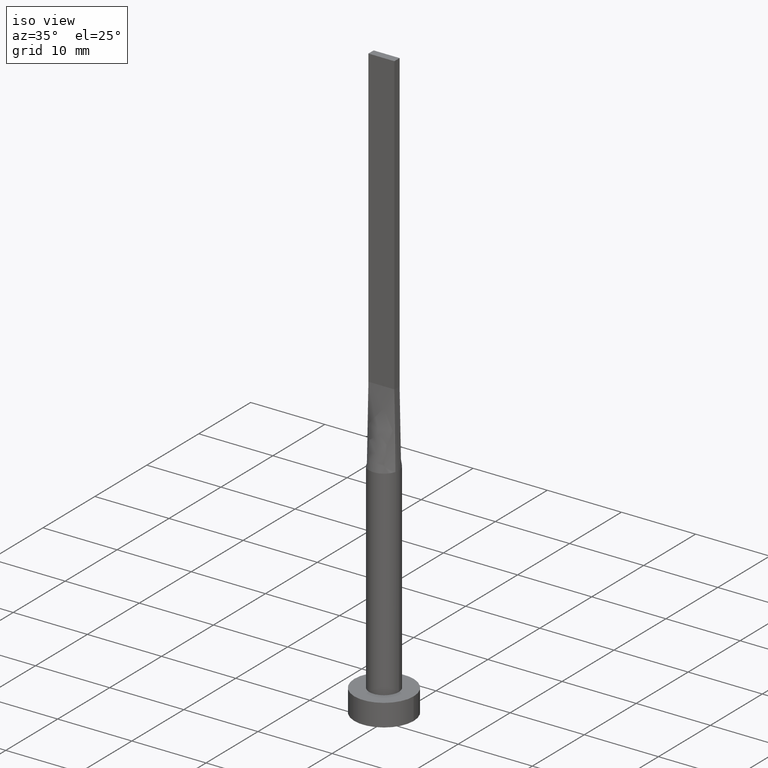
[diagram: clean part render]
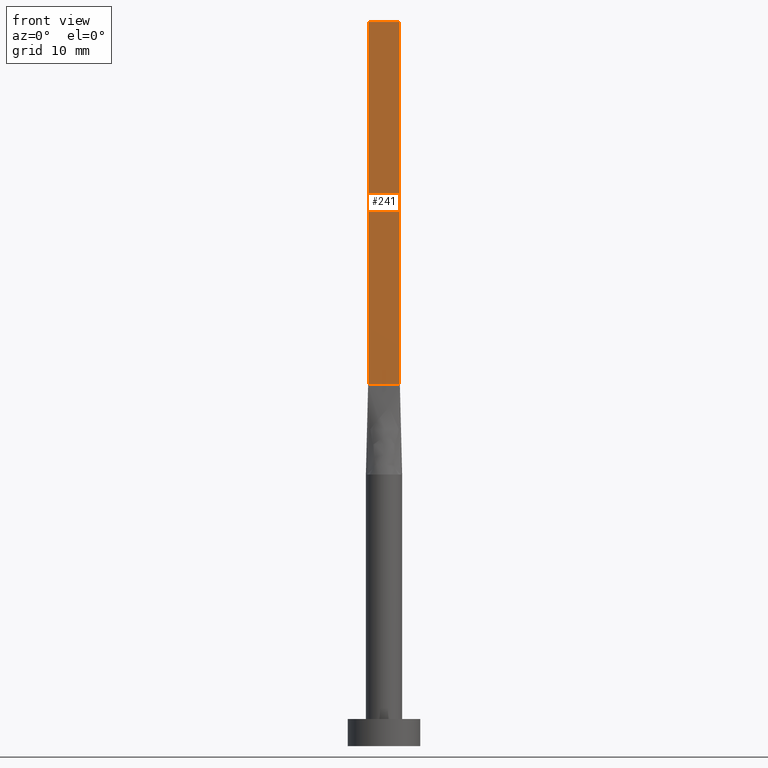
[diagram: tour spotlight — one face highlighted and labeled with its STEP entity id]
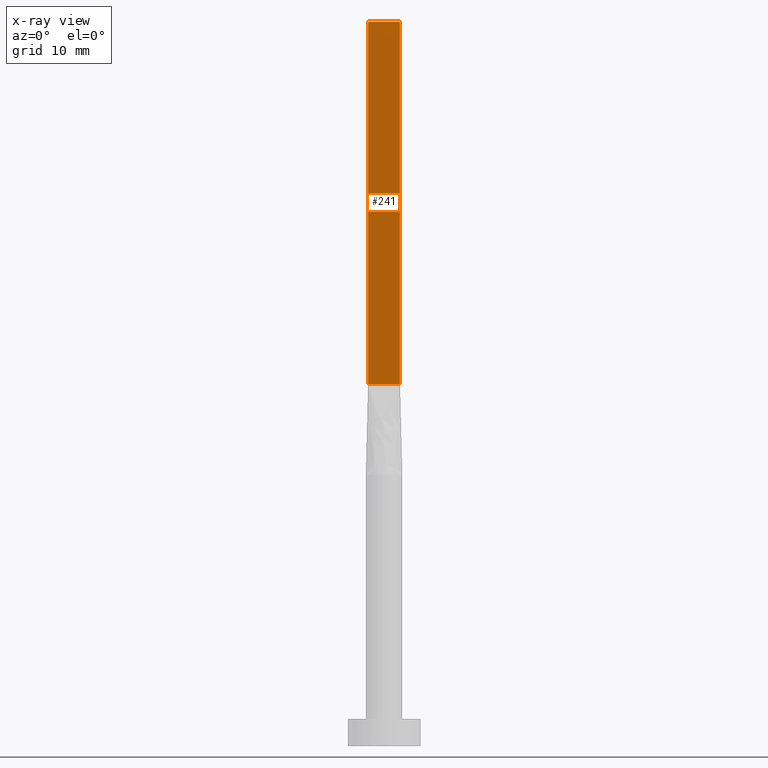
[diagram: x-ray of the same camera — body ghosted, this tour face saturated]
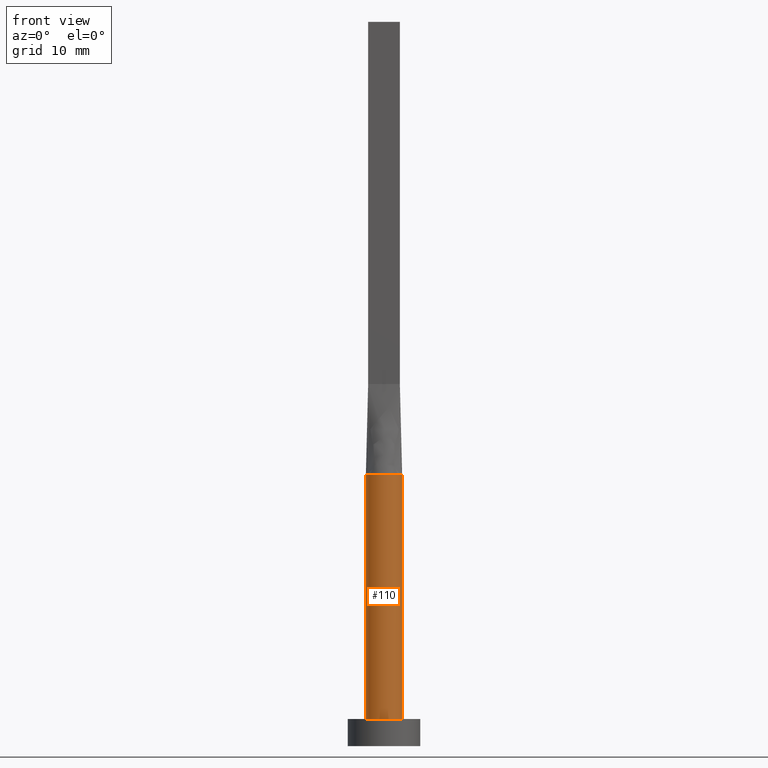
[diagram: tour spotlight — one face highlighted and labeled with its STEP entity id]
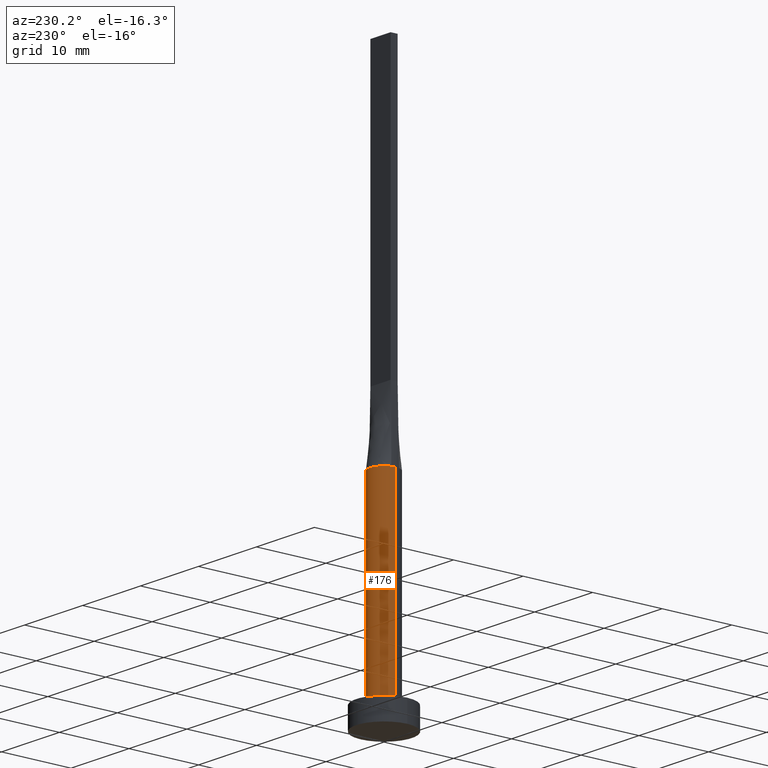
[diagram: tour spotlight — one face highlighted and labeled with its STEP entity id]
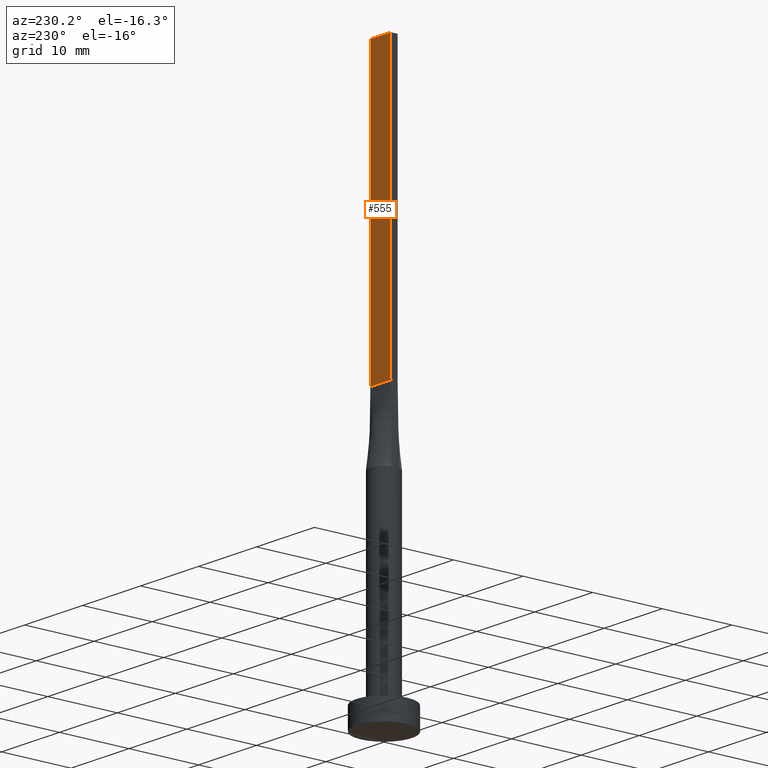
[diagram: tour spotlight — one face highlighted and labeled with its STEP entity id]
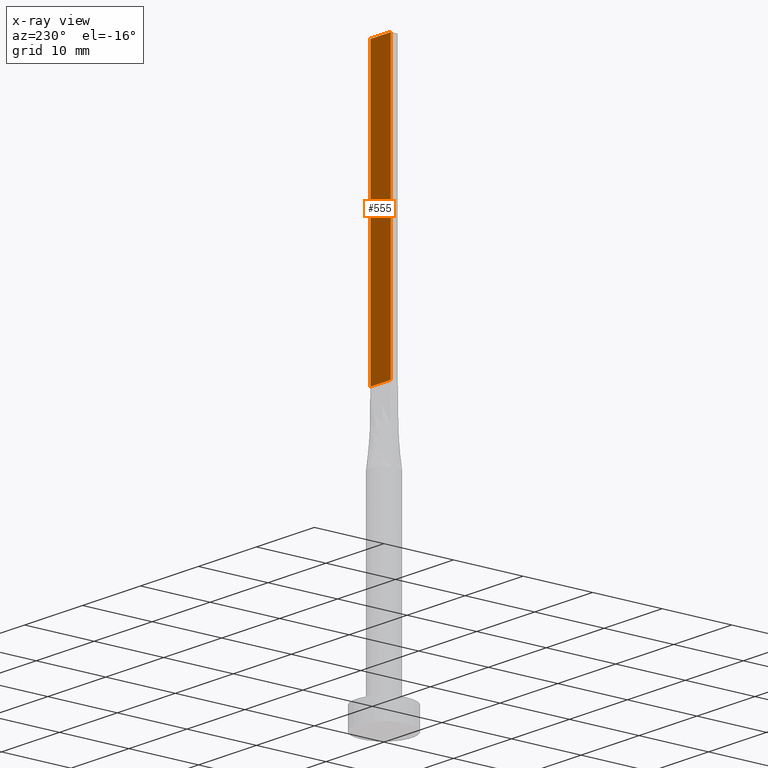
[diagram: x-ray of the same camera — body ghosted, this tour face saturated]
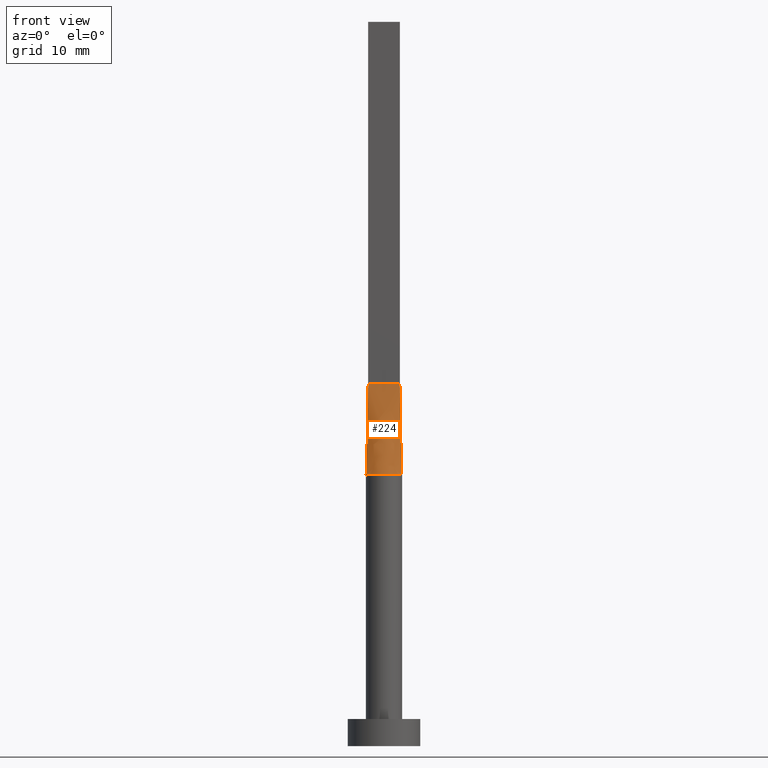
[diagram: tour spotlight — one face highlighted and labeled with its STEP entity id]
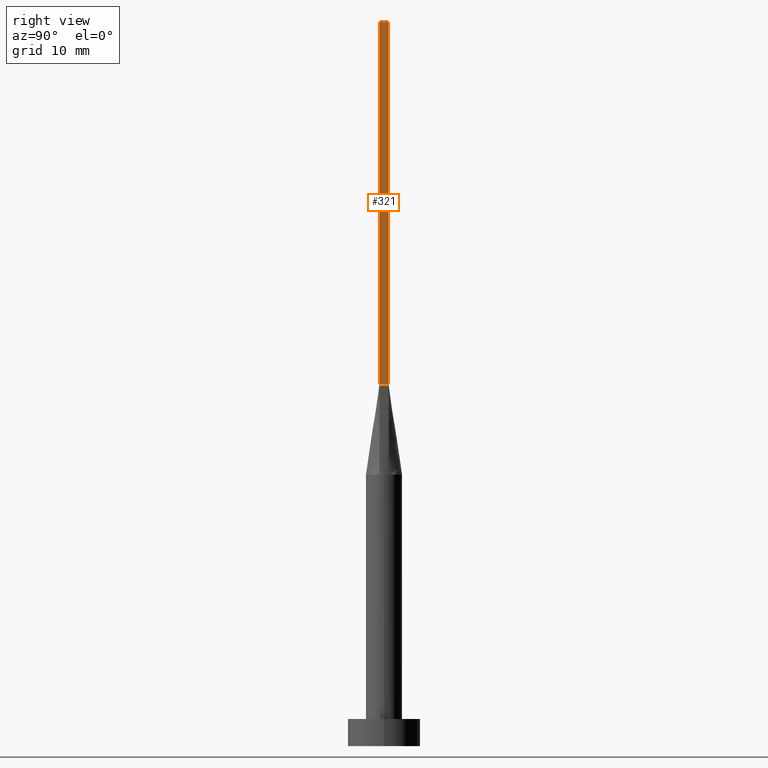
[diagram: tour spotlight — one face highlighted and labeled with its STEP entity id]
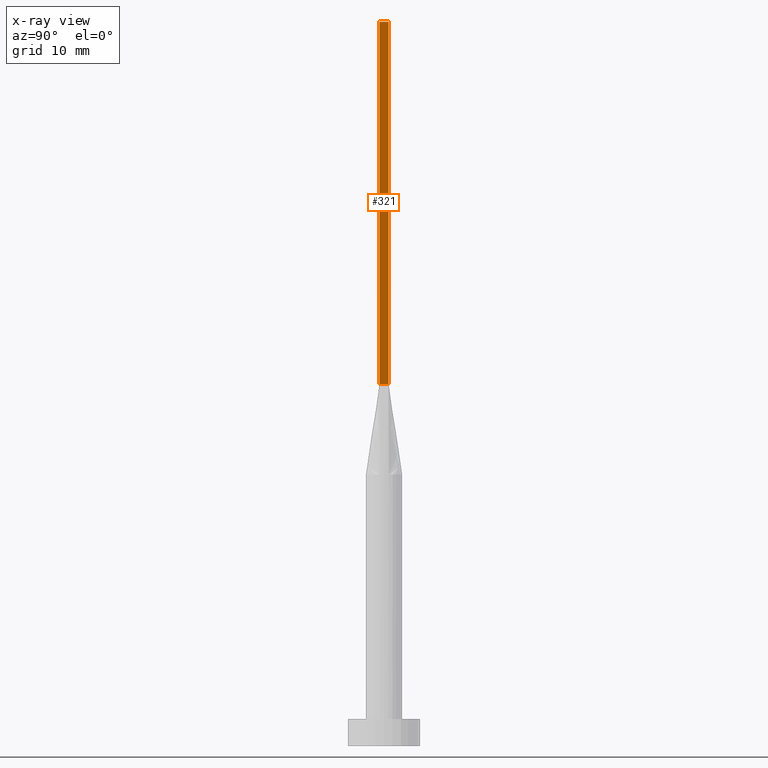
[diagram: x-ray of the same camera — body ghosted, this tour face saturated]
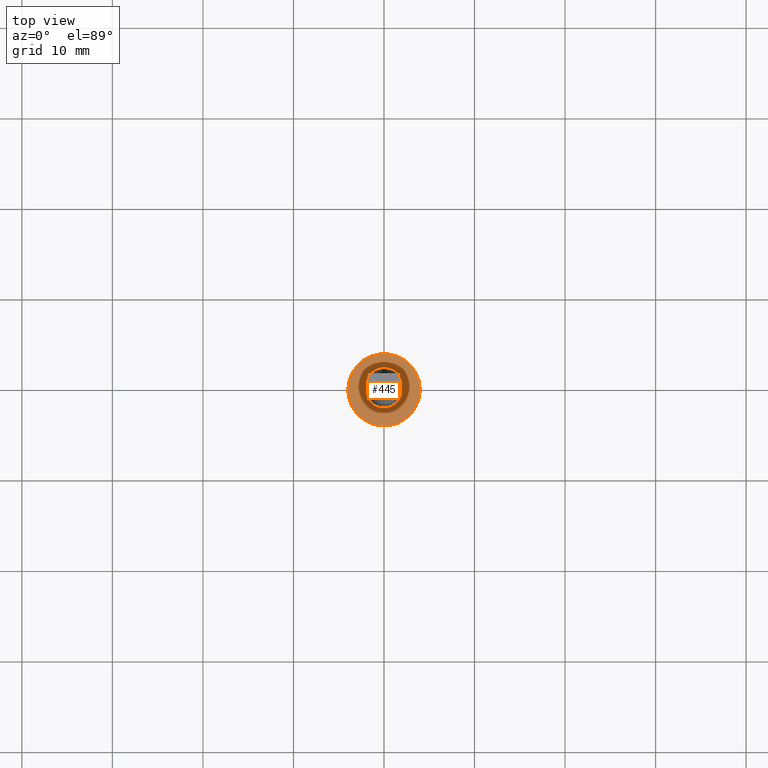
[diagram: tour spotlight — one face highlighted and labeled with its STEP entity id]
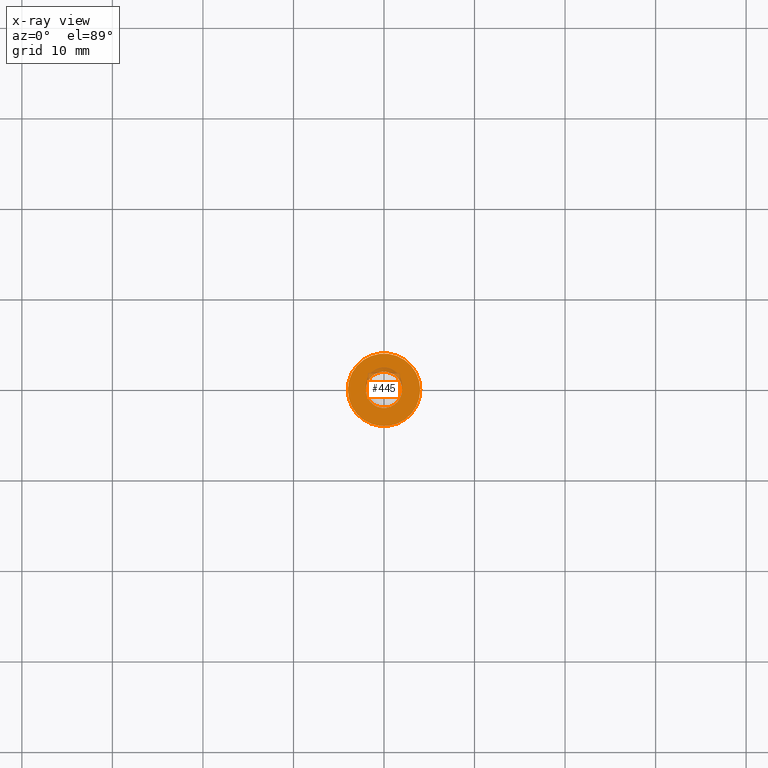
[diagram: x-ray of the same camera — body ghosted, this tour face saturated]
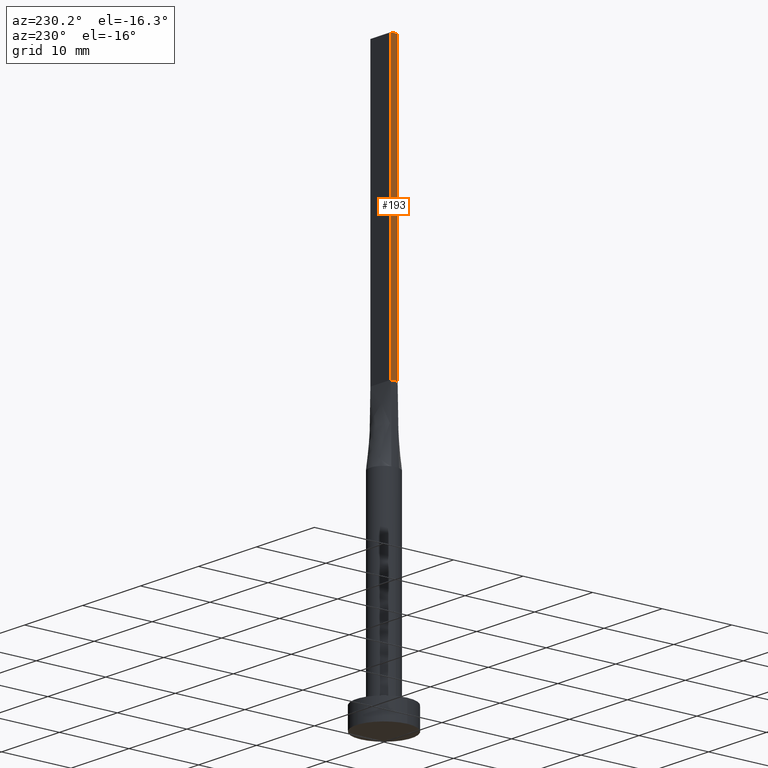
[diagram: tour spotlight — one face highlighted and labeled with its STEP entity id]
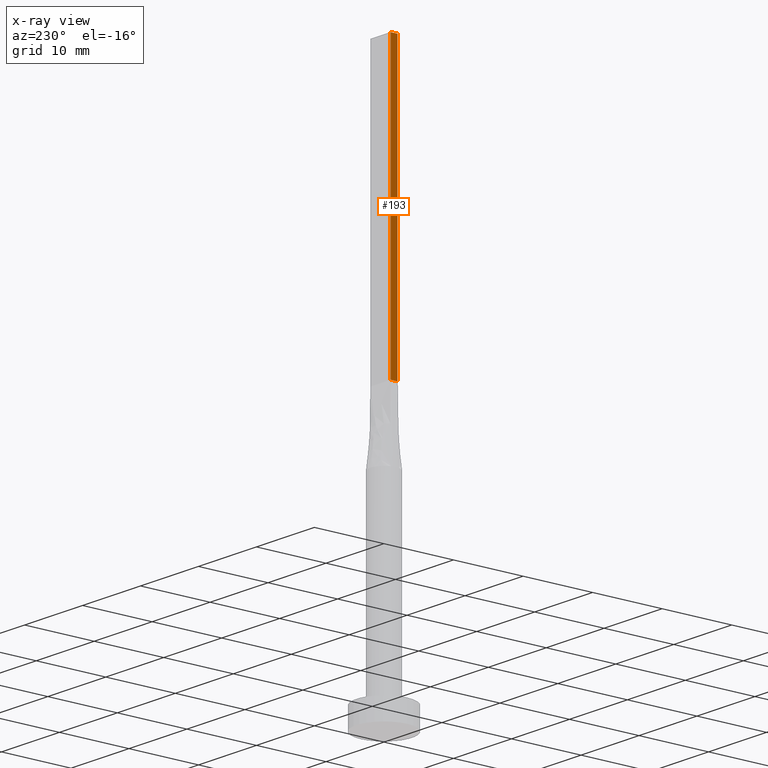
[diagram: x-ray of the same camera — body ghosted, this tour face saturated]
A machine part: a face-by-face anatomy tour. The part has 15 B-rep faces; the first image is the clean iso view, then the 8 largest visible faces are spotlighted one at a time (largest first), each with its STEP entity span.

Face 1 — front view, entity #241. An x-ray twin of the same camera follows (body ghosted, this face saturated) — the face is partly hidden behind the body. In plain terms, the highlighted planar face has unit normal (0, 1, -0).
Definition (entity closure, byte-faithful):
#26 = VERTEX_POINT ( 'NONE', #297 ) ;
#33 = ORIENTED_EDGE ( 'NONE', *, *, #76, .T. ) ;
#39 = DIRECTION ( 'NONE',  ( -0.000000000000000000, -0.000000000000000000, -1.000000000000000000 ) ) ;
#62 = LINE ( 'NONE', #243, #306 ) ;
#76 = EDGE_CURVE ( 'NONE', #236, #26, #520, .T. ) ;
#77 = CARTESIAN_POINT ( 'NONE',  ( -1.750000000000000000, -0.4999999999999995559, 80.00000000000000000 ) ) ;
#103 = VECTOR ( 'NONE', #39, 1000.000000000000000 ) ;
#112 = PLANE ( 'NONE',  #389 ) ;
#128 = VECTOR ( 'NONE', #191, 1000.000000000000000 ) ;
#132 = CARTESIAN_POINT ( 'NONE',  ( 1.750000000000000000, -0.4999999999999997780, 80.00000000000000000 ) ) ;
#156 = DIRECTION ( 'NONE',  ( -0.000000000000000000, -0.000000000000000000, -1.000000000000000000 ) ) ;
#185 = VERTEX_POINT ( 'NONE', #132 ) ;
#191 = DIRECTION ( 'NONE',  ( 1.000000000000000000, -6.195440985631454085E-17, 0.000000000000000000 ) ) ;
#203 = CARTESIAN_POINT ( 'NONE',  ( -1.750000000000000000, -0.4999999999999995559, 80.00000000000000000 ) ) ;
#205 = CARTESIAN_POINT ( 'NONE',  ( -1.750000000000000000, -0.4999999999999995559, 80.00000000000000000 ) ) ;
#236 = VERTEX_POINT ( 'NONE', #205 ) ;
#241 = ADVANCED_FACE ( 'NONE', ( #361 ), #112, .F. ) ;
#243 = CARTESIAN_POINT ( 'NONE',  ( 1.750000000000000000, -0.4999999999999997780, 80.00000000000000000 ) ) ;
#274 = CARTESIAN_POINT ( 'NONE',  ( -1.750000000000000000, -0.4999999999999995559, 80.00000000000000000 ) ) ;
#280 = ORIENTED_EDGE ( 'NONE', *, *, #348, .T. ) ;
#287 = DIRECTION ( 'NONE',  ( 6.195440985631454085E-17, 1.000000000000000000, -0.000000000000000000 ) ) ;
#297 = CARTESIAN_POINT ( 'NONE',  ( -1.750000000000000000, -0.4999999999999995559, 40.00000000000000000 ) ) ;
#306 = VECTOR ( 'NONE', #156, 1000.000000000000000 ) ;
#310 = CARTESIAN_POINT ( 'NONE',  ( 1.750000000000000000, -0.4999999999999997780, 40.00000000000000000 ) ) ;
#333 = LINE ( 'NONE', #203, #128 ) ;
#345 = DIRECTION ( 'NONE',  ( 1.000000000000000000, -6.195440985631454085E-17, 0.000000000000000000 ) ) ;
#348 = EDGE_CURVE ( 'NONE', #26, #511, #428, .T. ) ;
#361 = FACE_OUTER_BOUND ( 'NONE', #507, .T. ) ;
#378 = DIRECTION ( 'NONE',  ( -1.000000000000000000, 6.195440985631454085E-17, 0.000000000000000000 ) ) ;
#389 = AXIS2_PLACEMENT_3D ( 'NONE', #274, #287, #378 ) ;
#417 = ORIENTED_EDGE ( 'NONE', *, *, #493, .F. ) ;
#428 = LINE ( 'NONE', #574, #463 ) ;
#463 = VECTOR ( 'NONE', #345, 1000.000000000000000 ) ;
#489 = EDGE_CURVE ( 'NONE', #185, #511, #62, .T. ) ;
#493 = EDGE_CURVE ( 'NONE', #236, #185, #333, .T. ) ;
#507 = EDGE_LOOP ( 'NONE', ( #280, #560, #417, #33 ) ) ;
#511 = VERTEX_POINT ( 'NONE', #310 ) ;
#520 = LINE ( 'NONE', #77, #103 ) ;
#560 = ORIENTED_EDGE ( 'NONE', *, *, #489, .F. ) ;
#574 = CARTESIAN_POINT ( 'NONE',  ( -1.750000000000000000, -0.4999999999999995559, 40.00000000000000000 ) ) ;

Face 2 — front view, entity #110. In plain terms, the highlighted cylindrical surface (edge-blend (fillet) strip) has radius 2 mm, axis along (-0, -0, -1).
Definition (entity closure, byte-faithful):
#2 = FACE_OUTER_BOUND ( 'NONE', #377, .T. ) ;
#41 = AXIS2_PLACEMENT_3D ( 'NONE', #300, #291, #386 ) ;
#60 = ORIENTED_EDGE ( 'NONE', *, *, #266, .F. ) ;
#63 = VERTEX_POINT ( 'NONE', #121 ) ;
#75 = LINE ( 'NONE', #549, #186 ) ;
#101 = VERTEX_POINT ( 'NONE', #486 ) ;
#104 = DIRECTION ( 'NONE',  ( -0.000000000000000000, -0.000000000000000000, -1.000000000000000000 ) ) ;
#110 = ADVANCED_FACE ( 'NONE', ( #2 ), #336, .T. ) ;
#121 = CARTESIAN_POINT ( 'NONE',  ( 2.000000000000000000, 2.759698982225367658E-17, 30.00000000000000000 ) ) ;
#130 = EDGE_CURVE ( 'NONE', #63, #470, #75, .T. ) ;
#134 = AXIS2_PLACEMENT_3D ( 'NONE', #292, #474, #406 ) ;
#136 = EDGE_CURVE ( 'NONE', #419, #470, #533, .T. ) ;
#141 = CARTESIAN_POINT ( 'NONE',  ( 0.000000000000000000, 0.000000000000000000, 3.000000000000000000 ) ) ;
#158 = CARTESIAN_POINT ( 'NONE',  ( 1.923186205402444449, -0.5494823831763672173, 30.00000000000000000 ) ) ;
#160 = VERTEX_POINT ( 'NONE', #401 ) ;
#186 = VECTOR ( 'NONE', #366, 1000.000000000000000 ) ;
#194 = AXIS2_PLACEMENT_3D ( 'NONE', #562, #384, #290 ) ;
#266 = EDGE_CURVE ( 'NONE', #160, #101, #368, .T. ) ;
#273 = ORIENTED_EDGE ( 'NONE', *, *, #136, .T. ) ;
#276 = AXIS2_PLACEMENT_3D ( 'NONE', #141, #528, #313 ) ;
#277 = VECTOR ( 'NONE', #104, 1000.000000000000000 ) ;
#289 = VERTEX_POINT ( 'NONE', #158 ) ;
#290 = DIRECTION ( 'NONE',  ( 1.000000000000000000, 0.000000000000000000, 0.000000000000000000 ) ) ;
#291 = DIRECTION ( 'NONE',  ( -0.000000000000000000, -0.000000000000000000, -1.000000000000000000 ) ) ;
#292 = CARTESIAN_POINT ( 'NONE',  ( 0.000000000000000000, 0.000000000000000000, 30.00000000000000000 ) ) ;
#295 = EDGE_CURVE ( 'NONE', #101, #289, #461, .T. ) ;
#299 = CARTESIAN_POINT ( 'NONE',  ( -2.000000000000000000, 0.000000000000000000, 3.000000000000000000 ) ) ;
#300 = CARTESIAN_POINT ( 'NONE',  ( 0.000000000000000000, 0.000000000000000000, 30.00000000000000000 ) ) ;
#313 = DIRECTION ( 'NONE',  ( 1.000000000000000000, 0.000000000000000000, 0.000000000000000000 ) ) ;
#324 = ORIENTED_EDGE ( 'NONE', *, *, #130, .F. ) ;
#336 = CYLINDRICAL_SURFACE ( 'NONE', #41, 2.000000000000000000 ) ;
#366 = DIRECTION ( 'NONE',  ( -0.000000000000000000, -0.000000000000000000, -1.000000000000000000 ) ) ;
#368 = CIRCLE ( 'NONE', #194, 2.000000000000000000 ) ;
#377 = EDGE_LOOP ( 'NONE', ( #324, #564, #504, #60, #506, #273 ) ) ;
#384 = DIRECTION ( 'NONE',  ( 0.000000000000000000, 0.000000000000000000, 1.000000000000000000 ) ) ;
#386 = DIRECTION ( 'NONE',  ( -1.000000000000000000, 0.000000000000000000, 0.000000000000000000 ) ) ;
#387 = DIRECTION ( 'NONE',  ( 0.000000000000000000, 0.000000000000000000, 1.000000000000000000 ) ) ;
#393 = CARTESIAN_POINT ( 'NONE',  ( 0.000000000000000000, 0.000000000000000000, 30.00000000000000000 ) ) ;
#401 = CARTESIAN_POINT ( 'NONE',  ( -2.000000000000000000, 8.710755549421510381E-17, 30.00000000000000000 ) ) ;
#406 = DIRECTION ( 'NONE',  ( 1.000000000000000000, 0.000000000000000000, 0.000000000000000000 ) ) ;
#413 = EDGE_CURVE ( 'NONE', #289, #63, #534, .T. ) ;
#419 = VERTEX_POINT ( 'NONE', #299 ) ;
#461 = CIRCLE ( 'NONE', #134, 2.000000000000000000 ) ;
#465 = CARTESIAN_POINT ( 'NONE',  ( 2.000000000000000000, 2.449293598294706414E-16, 3.000000000000000000 ) ) ;
#468 = EDGE_CURVE ( 'NONE', #160, #419, #563, .T. ) ;
#470 = VERTEX_POINT ( 'NONE', #465 ) ;
#474 = DIRECTION ( 'NONE',  ( 0.000000000000000000, 0.000000000000000000, 1.000000000000000000 ) ) ;
#481 = DIRECTION ( 'NONE',  ( 1.000000000000000000, 3.552713678800500929E-15, 0.000000000000000000 ) ) ;
#486 = CARTESIAN_POINT ( 'NONE',  ( -1.923161340940673369, -0.5494751859438878894, 30.00000000000000000 ) ) ;
#504 = ORIENTED_EDGE ( 'NONE', *, *, #295, .F. ) ;
#506 = ORIENTED_EDGE ( 'NONE', *, *, #468, .T. ) ;
#508 = CARTESIAN_POINT ( 'NONE',  ( -2.000000000000000000, 0.000000000000000000, 30.00000000000000000 ) ) ;
#528 = DIRECTION ( 'NONE',  ( 0.000000000000000000, 0.000000000000000000, 1.000000000000000000 ) ) ;
#533 = CIRCLE ( 'NONE', #276, 2.000000000000000000 ) ;
#534 = CIRCLE ( 'NONE', #543, 2.000000000000000000 ) ;
#543 = AXIS2_PLACEMENT_3D ( 'NONE', #393, #387, #481 ) ;
#549 = CARTESIAN_POINT ( 'NONE',  ( 2.000000000000000000, 2.449293598294706414E-16, 30.00000000000000000 ) ) ;
#562 = CARTESIAN_POINT ( 'NONE',  ( 0.000000000000000000, 0.000000000000000000, 30.00000000000000000 ) ) ;
#563 = LINE ( 'NONE', #508, #277 ) ;
#564 = ORIENTED_EDGE ( 'NONE', *, *, #413, .F. ) ;

Face 3 — auxiliary view, entity #176. In plain terms, the highlighted cylindrical surface (edge-blend (fillet) strip) has radius 2 mm, axis along (-0, -0, -1).
Definition (entity closure, byte-faithful):
#20 = CARTESIAN_POINT ( 'NONE',  ( -1.616149014776643966, 1.193458220519943103, 30.00000000000000711 ) ) ;
#59 = CARTESIAN_POINT ( 'NONE',  ( 1.879022738048942154, 0.7035303061092218480, 30.00000000000000355 ) ) ;
#63 = VERTEX_POINT ( 'NONE', #121 ) ;
#65 = CARTESIAN_POINT ( 'NONE',  ( 0.000000000000000000, 0.000000000000000000, 30.00000000000000000 ) ) ;
#75 = LINE ( 'NONE', #549, #186 ) ;
#80 = CARTESIAN_POINT ( 'NONE',  ( -1.923179810488875541, 0.5494804890868837388, 30.00000000000000000 ) ) ;
#99 = CARTESIAN_POINT ( 'NONE',  ( 0.9545234919502409987, 1.774214358793529955, 30.00000000000000355 ) ) ;
#104 = DIRECTION ( 'NONE',  ( -0.000000000000000000, -0.000000000000000000, -1.000000000000000000 ) ) ;
#108 = B_SPLINE_CURVE_WITH_KNOTS ( 'NONE', 3,
 ( #552, #59, #458, #326, #374, #145, #99, #235, #415, #196, #381, #559, #238, #418, #20, #199, #152, #556 ),
 .UNSPECIFIED., .F., .F.,
 ( 4, 2, 2, 2, 2, 2, 2, 2, 4 ),
 ( 0.000000000000000000, 0.1249999999999999722, 0.2500000000000000000, 0.3750000000000000000, 0.5000000000000001110, 0.6250000000000001110, 0.7500000000000000000, 0.8750000000000000000, 1.000000000000000000 ),
 .UNSPECIFIED. ) ;
#121 = CARTESIAN_POINT ( 'NONE',  ( 2.000000000000000000, 2.759698982225367658E-17, 30.00000000000000000 ) ) ;
#123 = DIRECTION ( 'NONE',  ( 1.000000000000000000, 0.000000000000000000, 0.000000000000000000 ) ) ;
#130 = EDGE_CURVE ( 'NONE', #63, #470, #75, .T. ) ;
#135 = CYLINDRICAL_SURFACE ( 'NONE', #353, 2.000000000000000000 ) ;
#145 = CARTESIAN_POINT ( 'NONE',  ( 1.155438169178558461, 1.647245198242353714, 29.99999999999999645 ) ) ;
#151 = AXIS2_PLACEMENT_3D ( 'NONE', #519, #385, #391 ) ;
#152 = CARTESIAN_POINT ( 'NONE',  ( -1.879022738048941710, 0.7035303061092221810, 30.00000000000000000 ) ) ;
#160 = VERTEX_POINT ( 'NONE', #401 ) ;
#170 = DIRECTION ( 'NONE',  ( 0.000000000000000000, 0.000000000000000000, 1.000000000000000000 ) ) ;
#176 = ADVANCED_FACE ( 'NONE', ( #225 ), #135, .T. ) ;
#179 = DIRECTION ( 'NONE',  ( -0.000000000000000000, -0.000000000000000000, -1.000000000000000000 ) ) ;
#186 = VECTOR ( 'NONE', #366, 1000.000000000000000 ) ;
#196 = CARTESIAN_POINT ( 'NONE',  ( -0.2514338042514528415, 1.999999999999999556, 30.00000000000001066 ) ) ;
#199 = CARTESIAN_POINT ( 'NONE',  ( -1.812374357931688884, 0.8669367617086288780, 30.00000000000001066 ) ) ;
#206 = CIRCLE ( 'NONE', #151, 2.000000000000000000 ) ;
#221 = VERTEX_POINT ( 'NONE', #80 ) ;
#222 = CIRCLE ( 'NONE', #248, 2.000000000000000000 ) ;
#225 = FACE_OUTER_BOUND ( 'NONE', #478, .T. ) ;
#234 = ORIENTED_EDGE ( 'NONE', *, *, #433, .T. ) ;
#235 = CARTESIAN_POINT ( 'NONE',  ( 0.5022746254375803909, 1.951069421695587947, 29.99999999999999645 ) ) ;
#238 = CARTESIAN_POINT ( 'NONE',  ( -1.155438169178558017, 1.647245198242353936, 30.00000000000000711 ) ) ;
#239 = ORIENTED_EDGE ( 'NONE', *, *, #468, .F. ) ;
#248 = AXIS2_PLACEMENT_3D ( 'NONE', #65, #329, #323 ) ;
#277 = VECTOR ( 'NONE', #104, 1000.000000000000000 ) ;
#299 = CARTESIAN_POINT ( 'NONE',  ( -2.000000000000000000, 0.000000000000000000, 3.000000000000000000 ) ) ;
#323 = DIRECTION ( 'NONE',  ( 1.000000000000000000, 0.000000000000000000, 0.000000000000000000 ) ) ;
#326 = CARTESIAN_POINT ( 'NONE',  ( 1.616149014776643522, 1.193458220519943103, 30.00000000000000000 ) ) ;
#329 = DIRECTION ( 'NONE',  ( 0.000000000000000000, 0.000000000000000000, 1.000000000000000000 ) ) ;
#332 = CIRCLE ( 'NONE', #379, 2.000000000000000000 ) ;
#346 = ORIENTED_EDGE ( 'NONE', *, *, #130, .T. ) ;
#353 = AXIS2_PLACEMENT_3D ( 'NONE', #535, #179, #404 ) ;
#366 = DIRECTION ( 'NONE',  ( -0.000000000000000000, -0.000000000000000000, -1.000000000000000000 ) ) ;
#367 = CARTESIAN_POINT ( 'NONE',  ( 1.923154993136894975, 0.5494733089275741778, 30.00000000000000000 ) ) ;
#374 = CARTESIAN_POINT ( 'NONE',  ( 1.486037034853319616, 1.356520562679217834, 29.99999999999999289 ) ) ;
#379 = AXIS2_PLACEMENT_3D ( 'NONE', #577, #170, #123 ) ;
#381 = CARTESIAN_POINT ( 'NONE',  ( -0.5022746254375797248, 1.951069421695588169, 29.99999999999999645 ) ) ;
#382 = EDGE_CURVE ( 'NONE', #221, #160, #206, .T. ) ;
#385 = DIRECTION ( 'NONE',  ( 0.000000000000000000, 0.000000000000000000, 1.000000000000000000 ) ) ;
#391 = DIRECTION ( 'NONE',  ( 1.000000000000000000, 0.000000000000000000, 0.000000000000000000 ) ) ;
#401 = CARTESIAN_POINT ( 'NONE',  ( -2.000000000000000000, 8.710755549421510381E-17, 30.00000000000000000 ) ) ;
#404 = DIRECTION ( 'NONE',  ( -1.000000000000000000, 0.000000000000000000, 0.000000000000000000 ) ) ;
#415 = CARTESIAN_POINT ( 'NONE',  ( 0.2514338042514535632, 1.999999999999999556, 30.00000000000000355 ) ) ;
#418 = CARTESIAN_POINT ( 'NONE',  ( -1.486037034853319616, 1.356520562679218056, 30.00000000000000355 ) ) ;
#419 = VERTEX_POINT ( 'NONE', #299 ) ;
#433 = EDGE_CURVE ( 'NONE', #470, #419, #332, .T. ) ;
#450 = EDGE_CURVE ( 'NONE', #63, #495, #222, .T. ) ;
#457 = EDGE_CURVE ( 'NONE', #495, #221, #108, .T. ) ;
#458 = CARTESIAN_POINT ( 'NONE',  ( 1.812374357931689328, 0.8669367617086293221, 30.00000000000000355 ) ) ;
#465 = CARTESIAN_POINT ( 'NONE',  ( 2.000000000000000000, 2.449293598294706414E-16, 3.000000000000000000 ) ) ;
#468 = EDGE_CURVE ( 'NONE', #160, #419, #563, .T. ) ;
#470 = VERTEX_POINT ( 'NONE', #465 ) ;
#478 = EDGE_LOOP ( 'NONE', ( #554, #346, #234, #239, #557, #514 ) ) ;
#495 = VERTEX_POINT ( 'NONE', #367 ) ;
#508 = CARTESIAN_POINT ( 'NONE',  ( -2.000000000000000000, 0.000000000000000000, 30.00000000000000000 ) ) ;
#514 = ORIENTED_EDGE ( 'NONE', *, *, #457, .F. ) ;
#519 = CARTESIAN_POINT ( 'NONE',  ( 0.000000000000000000, 0.000000000000000000, 30.00000000000000000 ) ) ;
#535 = CARTESIAN_POINT ( 'NONE',  ( 0.000000000000000000, 0.000000000000000000, 30.00000000000000000 ) ) ;
#549 = CARTESIAN_POINT ( 'NONE',  ( 2.000000000000000000, 2.449293598294706414E-16, 30.00000000000000000 ) ) ;
#552 = CARTESIAN_POINT ( 'NONE',  ( 1.923154993136894975, 0.5494733089275741778, 30.00000000000000000 ) ) ;
#554 = ORIENTED_EDGE ( 'NONE', *, *, #450, .F. ) ;
#556 = CARTESIAN_POINT ( 'NONE',  ( -1.923179810488875541, 0.5494804890868837388, 30.00000000000000000 ) ) ;
#557 = ORIENTED_EDGE ( 'NONE', *, *, #382, .F. ) ;
#559 = CARTESIAN_POINT ( 'NONE',  ( -0.9545234919502401105, 1.774214358793530177, 30.00000000000000355 ) ) ;
#563 = LINE ( 'NONE', #508, #277 ) ;
#577 = CARTESIAN_POINT ( 'NONE',  ( 0.000000000000000000, 0.000000000000000000, 3.000000000000000000 ) ) ;

Face 4 — auxiliary view, entity #555. An x-ray twin of the same camera follows (body ghosted, this face saturated) — the face is partly hidden behind the body. In plain terms, the highlighted planar face has unit normal (0, -1, 0).
Definition (entity closure, byte-faithful):
#29 = EDGE_CURVE ( 'NONE', #452, #57, #349, .T. ) ;
#57 = VERTEX_POINT ( 'NONE', #482 ) ;
#81 = CARTESIAN_POINT ( 'NONE',  ( -1.749999999999999778, 0.5000000000000002220, 80.00000000000000000 ) ) ;
#94 = ORIENTED_EDGE ( 'NONE', *, *, #339, .F. ) ;
#118 = DIRECTION ( 'NONE',  ( 0.000000000000000000, -0.000000000000000000, -1.000000000000000000 ) ) ;
#122 = FACE_OUTER_BOUND ( 'NONE', #392, .T. ) ;
#143 = VECTOR ( 'NONE', #436, 1000.000000000000000 ) ;
#147 = VERTEX_POINT ( 'NONE', #309 ) ;
#159 = DIRECTION ( 'NONE',  ( -1.000000000000000000, 0.000000000000000000, 0.000000000000000000 ) ) ;
#163 = EDGE_CURVE ( 'NONE', #147, #57, #261, .T. ) ;
#175 = VECTOR ( 'NONE', #264, 1000.000000000000000 ) ;
#182 = EDGE_CURVE ( 'NONE', #330, #147, #357, .T. ) ;
#189 = ORIENTED_EDGE ( 'NONE', *, *, #163, .T. ) ;
#211 = LINE ( 'NONE', #253, #257 ) ;
#218 = DIRECTION ( 'NONE',  ( 0.000000000000000000, -1.000000000000000000, 0.000000000000000000 ) ) ;
#219 = CARTESIAN_POINT ( 'NONE',  ( -1.749999999999999778, 0.5000000000000002220, 40.00000000000000000 ) ) ;
#246 = ORIENTED_EDGE ( 'NONE', *, *, #29, .F. ) ;
#253 = CARTESIAN_POINT ( 'NONE',  ( 1.749999999999999778, 0.5000000000000002220, 80.00000000000000000 ) ) ;
#257 = VECTOR ( 'NONE', #159, 1000.000000000000000 ) ;
#261 = LINE ( 'NONE', #219, #175 ) ;
#264 = DIRECTION ( 'NONE',  ( -1.000000000000000000, -0.000000000000000000, -0.000000000000000000 ) ) ;
#293 = VECTOR ( 'NONE', #539, 1000.000000000000000 ) ;
#301 = CARTESIAN_POINT ( 'NONE',  ( 1.749999999999999778, 0.5000000000000002220, 80.00000000000000000 ) ) ;
#309 = CARTESIAN_POINT ( 'NONE',  ( 1.749999999999999778, 0.5000000000000002220, 40.00000000000000000 ) ) ;
#330 = VERTEX_POINT ( 'NONE', #567 ) ;
#339 = EDGE_CURVE ( 'NONE', #330, #452, #211, .T. ) ;
#349 = LINE ( 'NONE', #81, #143 ) ;
#352 = CARTESIAN_POINT ( 'NONE',  ( 1.749999999999999778, 0.5000000000000002220, 80.00000000000000000 ) ) ;
#354 = AXIS2_PLACEMENT_3D ( 'NONE', #301, #218, #118 ) ;
#357 = LINE ( 'NONE', #352, #293 ) ;
#392 = EDGE_LOOP ( 'NONE', ( #189, #246, #94, #459 ) ) ;
#436 = DIRECTION ( 'NONE',  ( -0.000000000000000000, -0.000000000000000000, -1.000000000000000000 ) ) ;
#452 = VERTEX_POINT ( 'NONE', #460 ) ;
#459 = ORIENTED_EDGE ( 'NONE', *, *, #182, .T. ) ;
#460 = CARTESIAN_POINT ( 'NONE',  ( -1.749999999999999778, 0.5000000000000002220, 80.00000000000000000 ) ) ;
#482 = CARTESIAN_POINT ( 'NONE',  ( -1.749999999999999778, 0.5000000000000002220, 40.00000000000000000 ) ) ;
#522 = PLANE ( 'NONE',  #354 ) ;
#539 = DIRECTION ( 'NONE',  ( -0.000000000000000000, -0.000000000000000000, -1.000000000000000000 ) ) ;
#555 = ADVANCED_FACE ( 'NONE', ( #122 ), #522, .F. ) ;
#567 = CARTESIAN_POINT ( 'NONE',  ( 1.749999999999999778, 0.5000000000000002220, 80.00000000000000000 ) ) ;

Face 5 — front view, entity #224. In plain terms, the highlighted face is a freeform B-spline surface patch.
Definition (entity closure, byte-faithful):
#1 = CARTESIAN_POINT ( 'NONE',  ( -1.750000000000000000, -0.4999999999999995559, 40.00000000000000000 ) ) ;
#10 = CARTESIAN_POINT ( 'NONE',  ( -1.616149014776643744, -1.193458220519941326, 29.99999999999999645 ) ) ;
#12 = CARTESIAN_POINT ( 'NONE',  ( 1.604166666666666519, -0.4999999999999997780, 39.99999999999999289 ) ) ;
#22 = CARTESIAN_POINT ( 'NONE',  ( 1.486037034853319616, -1.356520562679219166, 30.00000000000001066 ) ) ;
#24 = CARTESIAN_POINT ( 'NONE',  ( 0.2514338042514523419, -2.000000000000000444, 30.00000000000000000 ) ) ;
#26 = VERTEX_POINT ( 'NONE', #297 ) ;
#55 = ORIENTED_EDGE ( 'NONE', *, *, #295, .T. ) ;
#61 = CARTESIAN_POINT ( 'NONE',  ( 0.1458333333333314275, -0.4999999999999995559, 39.99999999999999289 ) ) ;
#64 = CARTESIAN_POINT ( 'NONE',  ( 1.020833333333331927, -0.4999999999999995559, 39.99999999999999289 ) ) ;
#67 = CARTESIAN_POINT ( 'NONE',  ( 0.9545234919502404436, -1.774214358793530177, 30.00000000000001066 ) ) ;
#84 = EDGE_CURVE ( 'NONE', #26, #101, #351, .T. ) ;
#95 = CARTESIAN_POINT ( 'NONE',  ( -1.812374357931689994, -0.8669367617086277678, 30.00000000000000355 ) ) ;
#101 = VERTEX_POINT ( 'NONE', #486 ) ;
#109 = CARTESIAN_POINT ( 'NONE',  ( -0.5022746254375808350, -1.951069421695587724, 29.99999999999999289 ) ) ;
#127 = EDGE_LOOP ( 'NONE', ( #55, #215, #424, #244 ) ) ;
#134 = AXIS2_PLACEMENT_3D ( 'NONE', #292, #474, #406 ) ;
#140 = CARTESIAN_POINT ( 'NONE',  ( -0.2514338042514540073, -1.999999999999999112, 29.99999999999999645 ) ) ;
#148 = CARTESIAN_POINT ( 'NONE',  ( 1.923047895281646325, -0.5494422557947558072, 30.00000000000000000 ) ) ;
#155 = CARTESIAN_POINT ( 'NONE',  ( 1.166666666666665408, -0.4999999999999995559, 39.99999999999999289 ) ) ;
#158 = CARTESIAN_POINT ( 'NONE',  ( 1.923186205402444449, -0.5494823831763672173, 30.00000000000000000 ) ) ;
#164 = VECTOR ( 'NONE', #173, 1000.000000000000227 ) ;
#173 = DIRECTION ( 'NONE',  ( -0.01730198768854150290, 0.004943425053868997360, 0.9998380887777591486 ) ) ;
#187 = CARTESIAN_POINT ( 'NONE',  ( 1.458333333333332815, -0.4999999999999996669, 39.99999999999999289 ) ) ;
#201 = CARTESIAN_POINT ( 'NONE',  ( -0.2916666666666685725, -0.4999999999999995559, 39.99999999999999289 ) ) ;
#208 = CARTESIAN_POINT ( 'NONE',  ( -1.166666666666667851, -0.4999999999999995559, 39.99999999999999289 ) ) ;
#210 = DIRECTION ( 'NONE',  ( -0.01730198768854152372, -0.004943425053868953992, -0.9998380887777591486 ) ) ;
#215 = ORIENTED_EDGE ( 'NONE', *, *, #569, .T. ) ;
#224 = ADVANCED_FACE ( 'NONE', ( #228 ), #268, .T. ) ;
#228 = FACE_OUTER_BOUND ( 'NONE', #127, .T. ) ;
#240 = CARTESIAN_POINT ( 'NONE',  ( -0.9545234919502417759, -1.774214358793529067, 30.00000000000000355 ) ) ;
#244 = ORIENTED_EDGE ( 'NONE', *, *, #84, .T. ) ;
#245 = CARTESIAN_POINT ( 'NONE',  ( 1.750000000000000000, -0.4999999999999997780, 40.00000000000000000 ) ) ;
#268 = B_SPLINE_SURFACE_WITH_KNOTS ( 'NONE', 3, 1, ( 
 ( #576, #1 ),
 ( #548, #558 ),
 ( #95, #467 ),
 ( #10, #208 ),
 ( #546, #335 ),
 ( #513, #464 ),
 ( #240, #365 ),
 ( #109, #201 ),
 ( #140, #422 ),
 ( #24, #61 ),
 ( #331, #453 ),
 ( #67, #283 ),
 ( #322, #502 ),
 ( #22, #64 ),
 ( #420, #155 ),
 ( #410, #187 ),
 ( #376, #12 ),
 ( #148, #245 ) ),
 .UNSPECIFIED., .F., .F., .F.,
 ( 4, 2, 2, 2, 2, 2, 2, 2, 4 ),
 ( 2, 2 ),
 ( 0.000000000000000000, 0.1249999999999999722, 0.2500000000000000000, 0.3750000000000000000, 0.5000000000000001110, 0.6250000000000001110, 0.7500000000000000000, 0.8750000000000000000, 1.000000000000000000 ),
 ( 0.000000000000000000, 1.000000000000000000 ),
 .UNSPECIFIED. ) ;
#283 = CARTESIAN_POINT ( 'NONE',  ( 0.5833333333333317050, -0.4999999999999995559, 39.99999999999999289 ) ) ;
#289 = VERTEX_POINT ( 'NONE', #158 ) ;
#292 = CARTESIAN_POINT ( 'NONE',  ( 0.000000000000000000, 0.000000000000000000, 30.00000000000000000 ) ) ;
#295 = EDGE_CURVE ( 'NONE', #101, #289, #461, .T. ) ;
#297 = CARTESIAN_POINT ( 'NONE',  ( -1.750000000000000000, -0.4999999999999995559, 40.00000000000000000 ) ) ;
#298 = CARTESIAN_POINT ( 'NONE',  ( 1.836523947640823051, -0.5247211278973777926, 35.00000000000000000 ) ) ;
#308 = LINE ( 'NONE', #298, #164 ) ;
#310 = CARTESIAN_POINT ( 'NONE',  ( 1.750000000000000000, -0.4999999999999997780, 40.00000000000000000 ) ) ;
#322 = CARTESIAN_POINT ( 'NONE',  ( 1.155438169178558017, -1.647245198242354158, 30.00000000000001066 ) ) ;
#331 = CARTESIAN_POINT ( 'NONE',  ( 0.5022746254375793917, -1.951069421695588169, 29.99999999999999645 ) ) ;
#335 = CARTESIAN_POINT ( 'NONE',  ( -1.020833333333334592, -0.4999999999999995559, 39.99999999999999289 ) ) ;
#345 = DIRECTION ( 'NONE',  ( 1.000000000000000000, -6.195440985631454085E-17, 0.000000000000000000 ) ) ;
#348 = EDGE_CURVE ( 'NONE', #26, #511, #428, .T. ) ;
#351 = LINE ( 'NONE', #388, #491 ) ;
#365 = CARTESIAN_POINT ( 'NONE',  ( -0.5833333333333350357, -0.4999999999999995559, 39.99999999999999289 ) ) ;
#376 = CARTESIAN_POINT ( 'NONE',  ( 1.879022738048941710, -0.7035303061092221810, 30.00000000000000000 ) ) ;
#388 = CARTESIAN_POINT ( 'NONE',  ( -1.836523947640823273, -0.5247211278973773485, 35.00000000000000000 ) ) ;
#406 = DIRECTION ( 'NONE',  ( 1.000000000000000000, 0.000000000000000000, 0.000000000000000000 ) ) ;
#410 = CARTESIAN_POINT ( 'NONE',  ( 1.812374357931689106, -0.8669367617086289890, 30.00000000000001066 ) ) ;
#420 = CARTESIAN_POINT ( 'NONE',  ( 1.616149014776643522, -1.193458220519943547, 30.00000000000000711 ) ) ;
#422 = CARTESIAN_POINT ( 'NONE',  ( -0.1458333333333353687, -0.4999999999999995559, 40.00000000000000000 ) ) ;
#424 = ORIENTED_EDGE ( 'NONE', *, *, #348, .F. ) ;
#428 = LINE ( 'NONE', #574, #463 ) ;
#453 = CARTESIAN_POINT ( 'NONE',  ( 0.2916666666666649643, -0.4999999999999995559, 39.99999999999999289 ) ) ;
#461 = CIRCLE ( 'NONE', #134, 2.000000000000000000 ) ;
#463 = VECTOR ( 'NONE', #345, 1000.000000000000000 ) ;
#464 = CARTESIAN_POINT ( 'NONE',  ( -0.7291666666666681840, -0.4999999999999995559, 39.99999999999999289 ) ) ;
#467 = CARTESIAN_POINT ( 'NONE',  ( -1.458333333333333925, -0.4999999999999995559, 39.99999999999999289 ) ) ;
#474 = DIRECTION ( 'NONE',  ( 0.000000000000000000, 0.000000000000000000, 1.000000000000000000 ) ) ;
#486 = CARTESIAN_POINT ( 'NONE',  ( -1.923161340940673369, -0.5494751859438878894, 30.00000000000000000 ) ) ;
#491 = VECTOR ( 'NONE', #210, 1000.000000000000227 ) ;
#502 = CARTESIAN_POINT ( 'NONE',  ( 0.7291666666666650753, -0.4999999999999995559, 39.99999999999999289 ) ) ;
#511 = VERTEX_POINT ( 'NONE', #310 ) ;
#513 = CARTESIAN_POINT ( 'NONE',  ( -1.155438169178558461, -1.647245198242353714, 30.00000000000000355 ) ) ;
#546 = CARTESIAN_POINT ( 'NONE',  ( -1.486037034853320060, -1.356520562679217390, 29.99999999999999645 ) ) ;
#548 = CARTESIAN_POINT ( 'NONE',  ( -1.879022738048942598, -0.7035303061092208488, 30.00000000000000355 ) ) ;
#558 = CARTESIAN_POINT ( 'NONE',  ( -1.604166666666666963, -0.4999999999999995559, 39.99999999999999289 ) ) ;
#569 = EDGE_CURVE ( 'NONE', #289, #511, #308, .T. ) ;
#574 = CARTESIAN_POINT ( 'NONE',  ( -1.750000000000000000, -0.4999999999999995559, 40.00000000000000000 ) ) ;
#576 = CARTESIAN_POINT ( 'NONE',  ( -1.923047895281646547, -0.5494422557947552521, 30.00000000000000000 ) ) ;

Face 6 — right view, entity #321. An x-ray twin of the same camera follows (body ghosted, this face saturated) — the face is partly hidden behind the body. In plain terms, the highlighted planar face has unit normal (-1, -0, 0).
Definition (entity closure, byte-faithful):
#35 = CARTESIAN_POINT ( 'NONE',  ( 1.750000000000000000, -0.4999999999999997780, 80.00000000000000000 ) ) ;
#50 = ORIENTED_EDGE ( 'NONE', *, *, #278, .T. ) ;
#62 = LINE ( 'NONE', #243, #306 ) ;
#72 = FACE_OUTER_BOUND ( 'NONE', #414, .T. ) ;
#74 = DIRECTION ( 'NONE',  ( 2.168404344971008868E-16, -1.000000000000000000, 0.000000000000000000 ) ) ;
#114 = LINE ( 'NONE', #256, #150 ) ;
#115 = VECTOR ( 'NONE', #318, 1000.000000000000000 ) ;
#132 = CARTESIAN_POINT ( 'NONE',  ( 1.750000000000000000, -0.4999999999999997780, 80.00000000000000000 ) ) ;
#147 = VERTEX_POINT ( 'NONE', #309 ) ;
#150 = VECTOR ( 'NONE', #249, 1000.000000000000000 ) ;
#156 = DIRECTION ( 'NONE',  ( -0.000000000000000000, -0.000000000000000000, -1.000000000000000000 ) ) ;
#182 = EDGE_CURVE ( 'NONE', #330, #147, #357, .T. ) ;
#185 = VERTEX_POINT ( 'NONE', #132 ) ;
#190 = LINE ( 'NONE', #471, #115 ) ;
#243 = CARTESIAN_POINT ( 'NONE',  ( 1.750000000000000000, -0.4999999999999997780, 80.00000000000000000 ) ) ;
#249 = DIRECTION ( 'NONE',  ( -2.168404344971008868E-16, 1.000000000000000000, 0.000000000000000000 ) ) ;
#256 = CARTESIAN_POINT ( 'NONE',  ( 1.750000000000000000, -0.4999999999999997780, 80.00000000000000000 ) ) ;
#265 = AXIS2_PLACEMENT_3D ( 'NONE', #35, #525, #74 ) ;
#278 = EDGE_CURVE ( 'NONE', #511, #147, #190, .T. ) ;
#293 = VECTOR ( 'NONE', #539, 1000.000000000000000 ) ;
#306 = VECTOR ( 'NONE', #156, 1000.000000000000000 ) ;
#309 = CARTESIAN_POINT ( 'NONE',  ( 1.749999999999999778, 0.5000000000000002220, 40.00000000000000000 ) ) ;
#310 = CARTESIAN_POINT ( 'NONE',  ( 1.750000000000000000, -0.4999999999999997780, 40.00000000000000000 ) ) ;
#318 = DIRECTION ( 'NONE',  ( -2.168404344971008868E-16, 1.000000000000000000, -0.000000000000000000 ) ) ;
#321 = ADVANCED_FACE ( 'NONE', ( #72 ), #341, .F. ) ;
#325 = EDGE_CURVE ( 'NONE', #185, #330, #114, .T. ) ;
#327 = ORIENTED_EDGE ( 'NONE', *, *, #489, .T. ) ;
#330 = VERTEX_POINT ( 'NONE', #567 ) ;
#341 = PLANE ( 'NONE',  #265 ) ;
#352 = CARTESIAN_POINT ( 'NONE',  ( 1.749999999999999778, 0.5000000000000002220, 80.00000000000000000 ) ) ;
#357 = LINE ( 'NONE', #352, #293 ) ;
#369 = ORIENTED_EDGE ( 'NONE', *, *, #182, .F. ) ;
#373 = ORIENTED_EDGE ( 'NONE', *, *, #325, .F. ) ;
#414 = EDGE_LOOP ( 'NONE', ( #50, #369, #373, #327 ) ) ;
#471 = CARTESIAN_POINT ( 'NONE',  ( 1.749999999999999778, 0.5000000000000002220, 40.00000000000000000 ) ) ;
#489 = EDGE_CURVE ( 'NONE', #185, #511, #62, .T. ) ;
#511 = VERTEX_POINT ( 'NONE', #310 ) ;
#525 = DIRECTION ( 'NONE',  ( -1.000000000000000000, -2.168404344971008868E-16, 0.000000000000000000 ) ) ;
#539 = DIRECTION ( 'NONE',  ( -0.000000000000000000, -0.000000000000000000, -1.000000000000000000 ) ) ;
#567 = CARTESIAN_POINT ( 'NONE',  ( 1.749999999999999778, 0.5000000000000002220, 80.00000000000000000 ) ) ;

Face 7 — top view, entity #445. An x-ray twin of the same camera follows (body ghosted, this face saturated) — the face is partly hidden behind the body. In plain terms, the highlighted planar face has unit normal (0, 0, 1).
Definition (entity closure, byte-faithful):
#11 = AXIS2_PLACEMENT_3D ( 'NONE', #540, #271, #178 ) ;
#23 = EDGE_LOOP ( 'NONE', ( #100, #154 ) ) ;
#25 = DIRECTION ( 'NONE',  ( 1.000000000000000000, 0.000000000000000000, -0.000000000000000000 ) ) ;
#28 = DIRECTION ( 'NONE',  ( 1.000000000000000000, 0.000000000000000000, 0.000000000000000000 ) ) ;
#69 = CIRCLE ( 'NONE', #484, 4.000000000000000000 ) ;
#73 = EDGE_LOOP ( 'NONE', ( #530, #409 ) ) ;
#100 = ORIENTED_EDGE ( 'NONE', *, *, #136, .F. ) ;
#106 = DIRECTION ( 'NONE',  ( 0.000000000000000000, 0.000000000000000000, 1.000000000000000000 ) ) ;
#123 = DIRECTION ( 'NONE',  ( 1.000000000000000000, 0.000000000000000000, 0.000000000000000000 ) ) ;
#125 = CARTESIAN_POINT ( 'NONE',  ( 4.000000000000000000, 4.898587196589412829E-16, 3.000000000000000000 ) ) ;
#126 = FACE_BOUND ( 'NONE', #23, .T. ) ;
#136 = EDGE_CURVE ( 'NONE', #419, #470, #533, .T. ) ;
#141 = CARTESIAN_POINT ( 'NONE',  ( 0.000000000000000000, 0.000000000000000000, 3.000000000000000000 ) ) ;
#154 = ORIENTED_EDGE ( 'NONE', *, *, #433, .F. ) ;
#165 = VERTEX_POINT ( 'NONE', #125 ) ;
#170 = DIRECTION ( 'NONE',  ( 0.000000000000000000, 0.000000000000000000, 1.000000000000000000 ) ) ;
#178 = DIRECTION ( 'NONE',  ( 1.000000000000000000, 0.000000000000000000, 0.000000000000000000 ) ) ;
#213 = PLANE ( 'NONE',  #523 ) ;
#233 = EDGE_CURVE ( 'NONE', #165, #383, #69, .T. ) ;
#271 = DIRECTION ( 'NONE',  ( 0.000000000000000000, 0.000000000000000000, 1.000000000000000000 ) ) ;
#276 = AXIS2_PLACEMENT_3D ( 'NONE', #141, #528, #313 ) ;
#299 = CARTESIAN_POINT ( 'NONE',  ( -2.000000000000000000, 0.000000000000000000, 3.000000000000000000 ) ) ;
#305 = DIRECTION ( 'NONE',  ( 0.000000000000000000, 0.000000000000000000, 1.000000000000000000 ) ) ;
#313 = DIRECTION ( 'NONE',  ( 1.000000000000000000, 0.000000000000000000, 0.000000000000000000 ) ) ;
#332 = CIRCLE ( 'NONE', #379, 2.000000000000000000 ) ;
#347 = CARTESIAN_POINT ( 'NONE',  ( 0.000000000000000000, 0.000000000000000000, 3.000000000000000000 ) ) ;
#370 = CIRCLE ( 'NONE', #11, 4.000000000000000000 ) ;
#379 = AXIS2_PLACEMENT_3D ( 'NONE', #577, #170, #123 ) ;
#383 = VERTEX_POINT ( 'NONE', #435 ) ;
#409 = ORIENTED_EDGE ( 'NONE', *, *, #233, .T. ) ;
#419 = VERTEX_POINT ( 'NONE', #299 ) ;
#433 = EDGE_CURVE ( 'NONE', #470, #419, #332, .T. ) ;
#435 = CARTESIAN_POINT ( 'NONE',  ( -4.000000000000000000, 0.000000000000000000, 3.000000000000000000 ) ) ;
#438 = FACE_OUTER_BOUND ( 'NONE', #73, .T. ) ;
#445 = ADVANCED_FACE ( 'NONE', ( #126, #438 ), #213, .T. ) ;
#465 = CARTESIAN_POINT ( 'NONE',  ( 2.000000000000000000, 2.449293598294706414E-16, 3.000000000000000000 ) ) ;
#470 = VERTEX_POINT ( 'NONE', #465 ) ;
#484 = AXIS2_PLACEMENT_3D ( 'NONE', #517, #106, #28 ) ;
#510 = EDGE_CURVE ( 'NONE', #383, #165, #370, .T. ) ;
#517 = CARTESIAN_POINT ( 'NONE',  ( 0.000000000000000000, 0.000000000000000000, 3.000000000000000000 ) ) ;
#523 = AXIS2_PLACEMENT_3D ( 'NONE', #347, #305, #25 ) ;
#528 = DIRECTION ( 'NONE',  ( 0.000000000000000000, 0.000000000000000000, 1.000000000000000000 ) ) ;
#530 = ORIENTED_EDGE ( 'NONE', *, *, #510, .T. ) ;
#533 = CIRCLE ( 'NONE', #276, 2.000000000000000000 ) ;
#540 = CARTESIAN_POINT ( 'NONE',  ( 0.000000000000000000, 0.000000000000000000, 3.000000000000000000 ) ) ;
#577 = CARTESIAN_POINT ( 'NONE',  ( 0.000000000000000000, 0.000000000000000000, 3.000000000000000000 ) ) ;

Face 8 — auxiliary view, entity #193. An x-ray twin of the same camera follows (body ghosted, this face saturated) — the face is partly hidden behind the body. In plain terms, the highlighted planar face has unit normal (1, -0, 0).
Definition (entity closure, byte-faithful):
#13 = EDGE_CURVE ( 'NONE', #57, #26, #252, .T. ) ;
#18 = ORIENTED_EDGE ( 'NONE', *, *, #13, .T. ) ;
#26 = VERTEX_POINT ( 'NONE', #297 ) ;
#29 = EDGE_CURVE ( 'NONE', #452, #57, #349, .T. ) ;
#38 = DIRECTION ( 'NONE',  ( -2.168404344971009361E-16, -1.000000000000000000, 0.000000000000000000 ) ) ;
#39 = DIRECTION ( 'NONE',  ( -0.000000000000000000, -0.000000000000000000, -1.000000000000000000 ) ) ;
#42 = VECTOR ( 'NONE', #38, 1000.000000000000000 ) ;
#57 = VERTEX_POINT ( 'NONE', #482 ) ;
#76 = EDGE_CURVE ( 'NONE', #236, #26, #520, .T. ) ;
#77 = CARTESIAN_POINT ( 'NONE',  ( -1.750000000000000000, -0.4999999999999995559, 80.00000000000000000 ) ) ;
#81 = CARTESIAN_POINT ( 'NONE',  ( -1.749999999999999778, 0.5000000000000002220, 80.00000000000000000 ) ) ;
#103 = VECTOR ( 'NONE', #39, 1000.000000000000000 ) ;
#142 = AXIS2_PLACEMENT_3D ( 'NONE', #496, #396, #350 ) ;
#143 = VECTOR ( 'NONE', #436, 1000.000000000000000 ) ;
#146 = ORIENTED_EDGE ( 'NONE', *, *, #76, .F. ) ;
#167 = LINE ( 'NONE', #216, #42 ) ;
#183 = FACE_OUTER_BOUND ( 'NONE', #192, .T. ) ;
#192 = EDGE_LOOP ( 'NONE', ( #18, #146, #403, #421 ) ) ;
#193 = ADVANCED_FACE ( 'NONE', ( #183 ), #358, .F. ) ;
#205 = CARTESIAN_POINT ( 'NONE',  ( -1.750000000000000000, -0.4999999999999995559, 80.00000000000000000 ) ) ;
#216 = CARTESIAN_POINT ( 'NONE',  ( -1.749999999999999778, 0.5000000000000002220, 80.00000000000000000 ) ) ;
#217 = DIRECTION ( 'NONE',  ( -2.168404344971009361E-16, -1.000000000000000000, 0.000000000000000000 ) ) ;
#236 = VERTEX_POINT ( 'NONE', #205 ) ;
#252 = LINE ( 'NONE', #432, #550 ) ;
#297 = CARTESIAN_POINT ( 'NONE',  ( -1.750000000000000000, -0.4999999999999995559, 40.00000000000000000 ) ) ;
#349 = LINE ( 'NONE', #81, #143 ) ;
#350 = DIRECTION ( 'NONE',  ( 2.168404344971009361E-16, 1.000000000000000000, 0.000000000000000000 ) ) ;
#358 = PLANE ( 'NONE',  #142 ) ;
#371 = EDGE_CURVE ( 'NONE', #452, #236, #167, .T. ) ;
#396 = DIRECTION ( 'NONE',  ( 1.000000000000000000, -2.168404344971009361E-16, 0.000000000000000000 ) ) ;
#403 = ORIENTED_EDGE ( 'NONE', *, *, #371, .F. ) ;
#421 = ORIENTED_EDGE ( 'NONE', *, *, #29, .T. ) ;
#432 = CARTESIAN_POINT ( 'NONE',  ( -1.749999999999999778, 0.5000000000000002220, 40.00000000000000000 ) ) ;
#436 = DIRECTION ( 'NONE',  ( -0.000000000000000000, -0.000000000000000000, -1.000000000000000000 ) ) ;
#452 = VERTEX_POINT ( 'NONE', #460 ) ;
#460 = CARTESIAN_POINT ( 'NONE',  ( -1.749999999999999778, 0.5000000000000002220, 80.00000000000000000 ) ) ;
#482 = CARTESIAN_POINT ( 'NONE',  ( -1.749999999999999778, 0.5000000000000002220, 40.00000000000000000 ) ) ;
#496 = CARTESIAN_POINT ( 'NONE',  ( -1.749999999999999778, 0.5000000000000002220, 80.00000000000000000 ) ) ;
#520 = LINE ( 'NONE', #77, #103 ) ;
#550 = VECTOR ( 'NONE', #217, 1000.000000000000000 ) ;